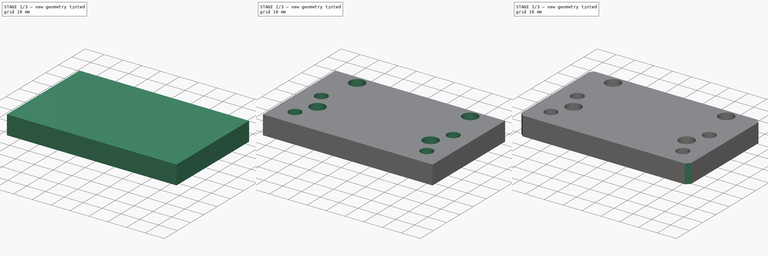
[diagram: build sequence overview — one tinted view per stage of 3, left to right]
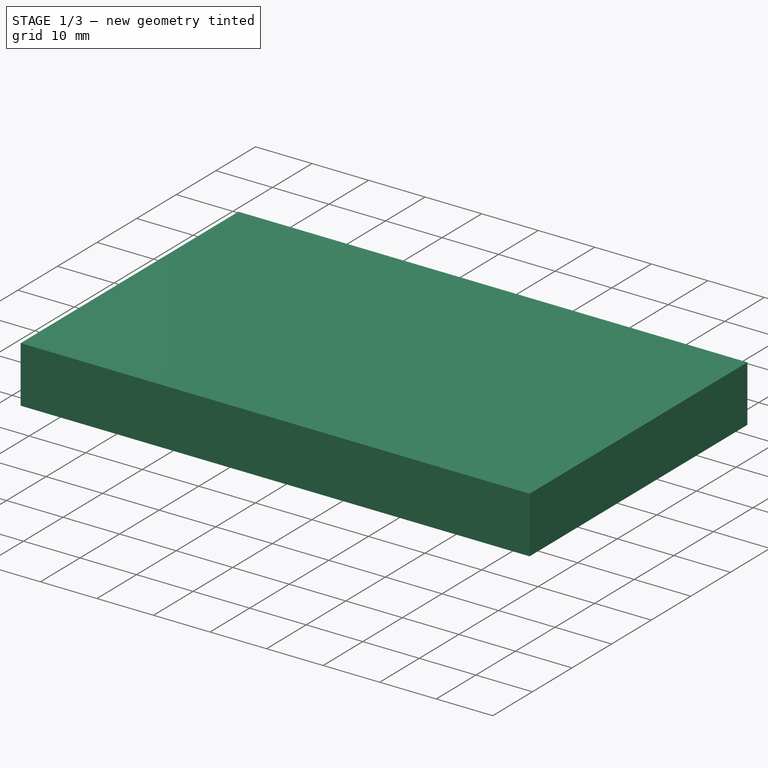
[diagram: stage 1 of 3 — iso view after this stage's code; geometry added in this stage tinted green]
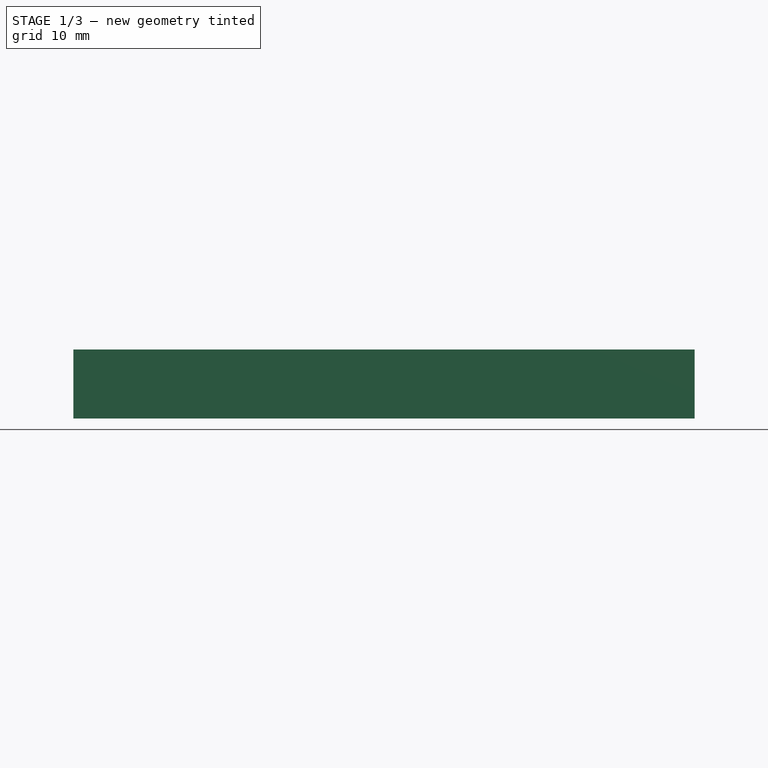
[diagram: stage 1 of 3 — front view after this stage's code; geometry added in this stage tinted green]
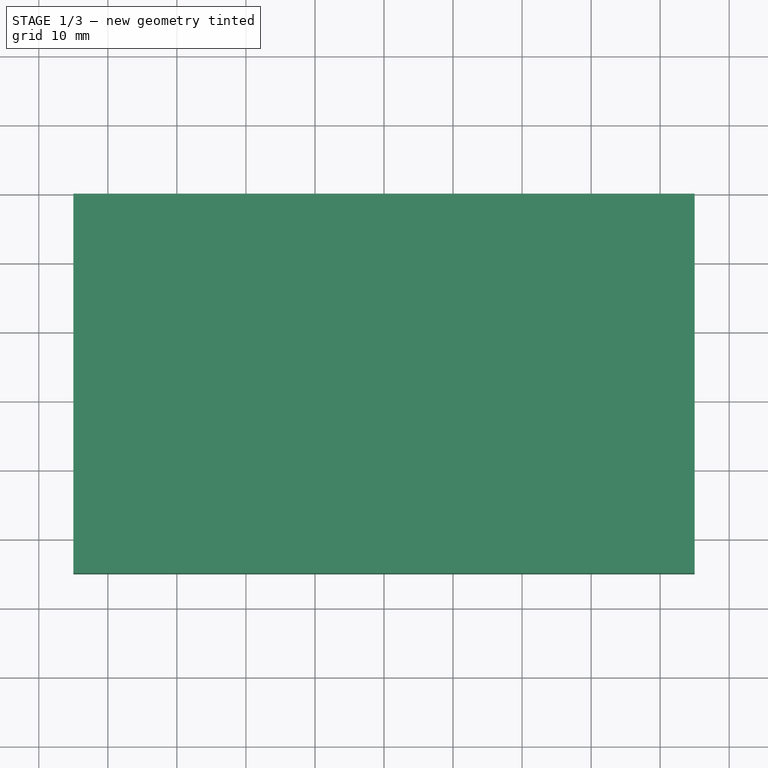
[diagram: stage 1 of 3 — top view after this stage's code; geometry added in this stage tinted green]
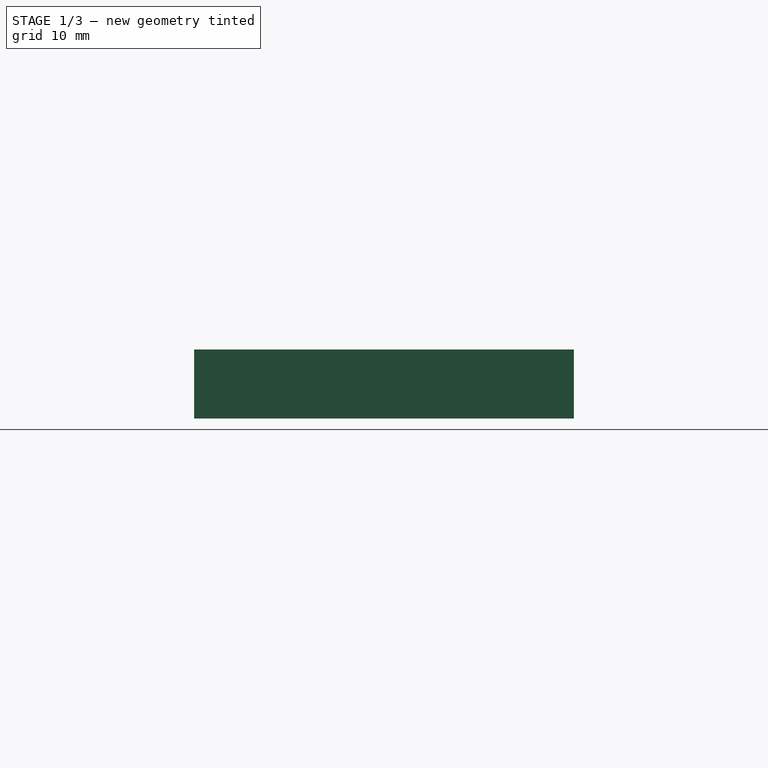
[diagram: stage 1 of 3 — right view after this stage's code; geometry added in this stage tinted green]
FCSTD DOCUMENT  (FreeCAD 1.0R39109 (Git))
Label: Spindle bracket
License: All rights reserved
LicenseURL: http://en.wikipedia.org/wiki/All_rights_reserved
objects: Sketcher::SketchObject×4, PartDesign::Pocket×2, PartDesign::Chamfer×2, PartDesign::Pad×1, PartDesign::Hole×1, Part::Feature×1, PartDesign::Body×1, Part::FeaturePython×1
note: 29 computed .brp shape members not serialized (recipe doc carries the construction recipe); baked Part::Feature solids carry a one-line shape summary decoded from their .brp

FEATURE [Sketcher::SketchObject] Sketch
  ArcFitTolerance = 1e-06
  AttachmentSupport = -> [XY_Plane]
  FullyConstrained = true
  MakeInternals = false
  MapMode = 5
  sketch-geometry (4):
    g0: LineSegment StartX=-45 StartY=50 StartZ=0 EndX=-45 EndY=-5 EndZ=0
    g1: LineSegment StartX=-45 StartY=-5 StartZ=0 EndX=45 EndY=-5 EndZ=0
    g2: LineSegment StartX=45 StartY=-5 StartZ=0 EndX=45 EndY=50 EndZ=0
    g3: LineSegment StartX=45 StartY=50 StartZ=0 EndX=-45 EndY=50 EndZ=0
  constraints (11):
    c: Coincident(g0,g1)
    c: Coincident(g1,g2)
    c: Coincident(g2,g3)
    c: Coincident(g3,g0)
    c: Vertical(g0)
    c: Vertical(g2)
    c: Horizontal(g3)
    c: Distance(g0,g2) = 90
    c: Distance(g1,g3) = 55
    c: Symmetric(g0,g1,g-2)
    c: DistanceY(g-1,g1) = -5
FEATURE [PartDesign::Pad] Pad
  Direction = (0,0,1)
  Length = 10
  Length2 = 10
  Profile = -> Sketch
  ReferenceAxis = -> Sketch [N_Axis]
  Refine = true
  Reversed = true
  Suppressed = false
  Type = 0
FEATURE [PartDesign::Body] Body
  AllowCompound = false
  Group = -> [Sketch,Pad,Sketch001,Hole,Sketch002,Pocket,Sketch003,Pocket001,Chamfer,Chamfer001]
  Origin = -> Origin
  Tip = -> Chamfer001
FEATURE [Part::FeaturePython] Nut  label="M6-Nut"  # WARN: FeaturePython — macro-defined, semantics opaque (R4)
  Diameter = 8
  Invert = false
  LeftHanded = false
  MatchOuter = false
  OffsetAngle = 0
  Placement = pos=(-35,5,-10) rot=(0,0,1;1.5708rad)
  Thread = false
  Type = 31
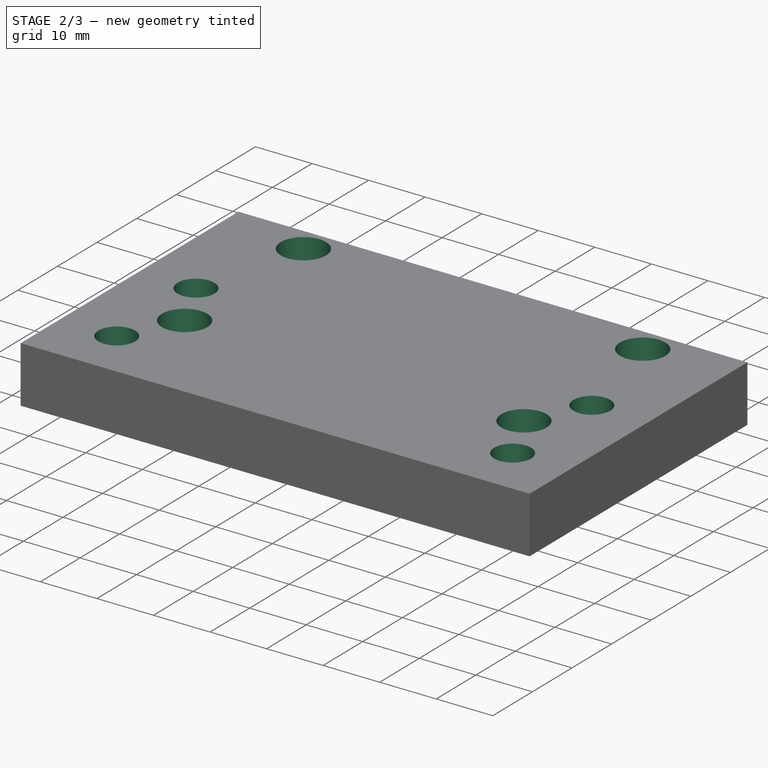
[diagram: stage 2 of 3 — iso view after this stage's code; geometry added in this stage tinted green]
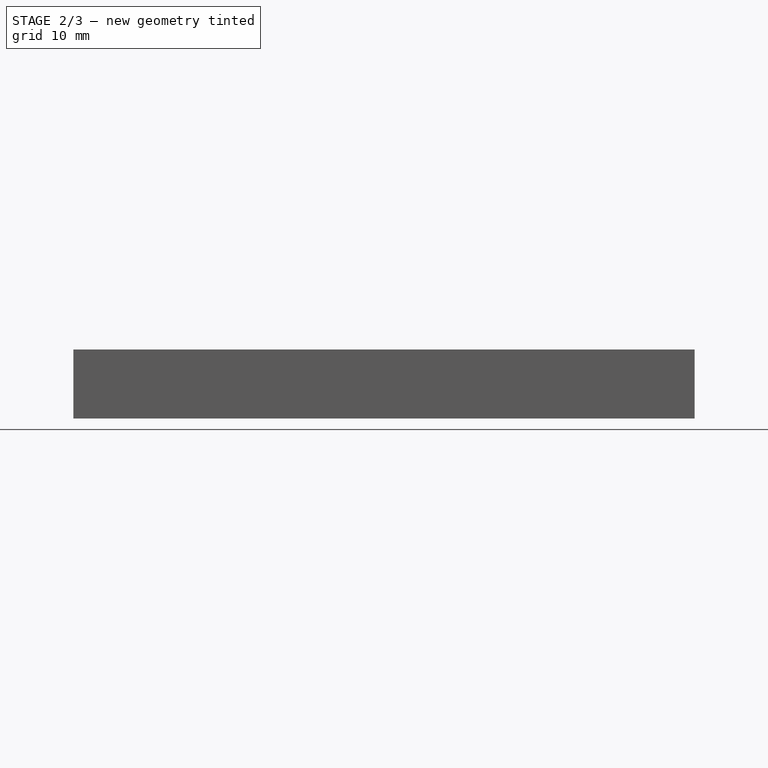
[diagram: stage 2 of 3 — front view after this stage's code; geometry added in this stage tinted green]
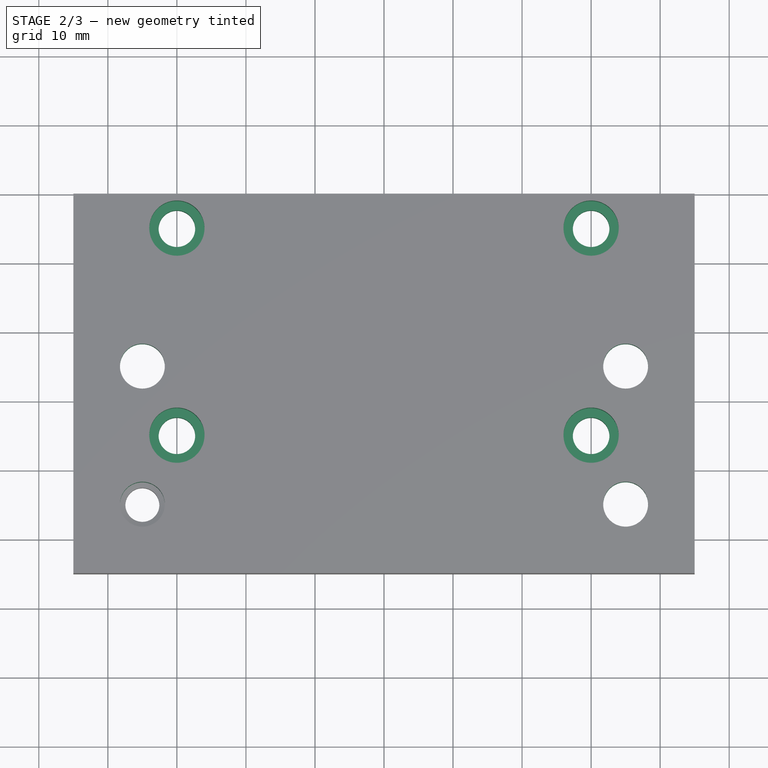
[diagram: stage 2 of 3 — top view after this stage's code; geometry added in this stage tinted green]
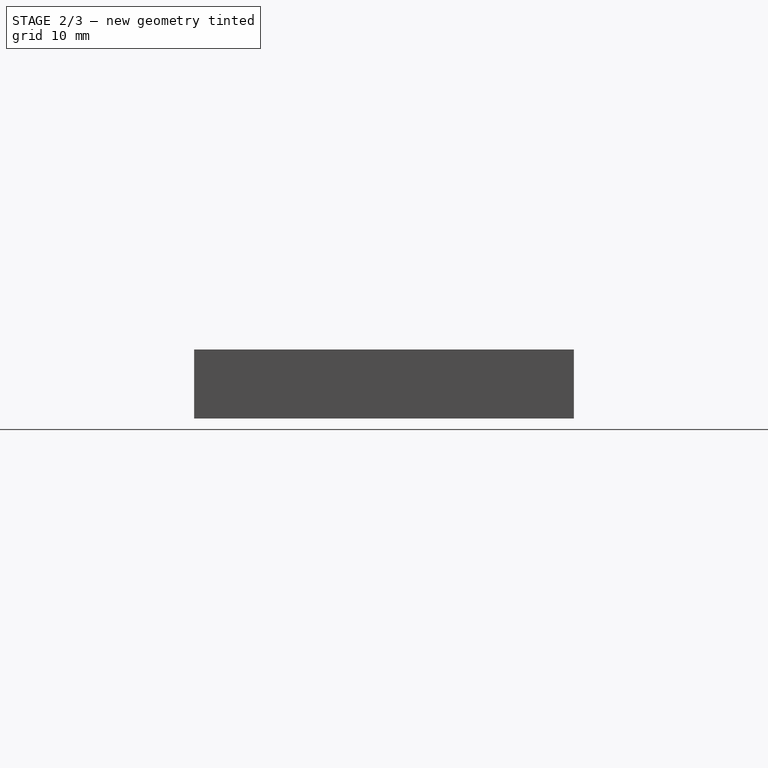
[diagram: stage 2 of 3 — right view after this stage's code; geometry added in this stage tinted green]
FEATURE [Sketcher::SketchObject] Sketch001
  ArcFitTolerance = 1e-06
  AttachmentSupport = -> [XY_Plane]
  FullyConstrained = true
  MakeInternals = false
  MapMode = 5
  sketch-geometry (9):
    g0: LineSegment [constr] StartX=-30 StartY=45 StartZ=0 EndX=-30 EndY=15 EndZ=0
    g1: LineSegment [constr] StartX=-30 StartY=15 StartZ=0 EndX=30 EndY=15 EndZ=0
    g2: LineSegment [constr] StartX=30 StartY=15 StartZ=0 EndX=30 EndY=45 EndZ=0
    g3: LineSegment [constr] StartX=30 StartY=45 StartZ=0 EndX=-30 EndY=45 EndZ=0
    g4: Circle CenterX=-30 CenterY=45 CenterZ=0 NormalX=0 NormalY=0 NormalZ=1 AngleXU=0 Radius=2.5
    g5: Circle CenterX=30 CenterY=45 CenterZ=0 NormalX=0 NormalY=0 NormalZ=1 AngleXU=0 Radius=2.5
    g6: Circle CenterX=30 CenterY=15 CenterZ=0 NormalX=0 NormalY=0 NormalZ=1 AngleXU=0 Radius=2.5
    g7: Circle CenterX=-30 CenterY=15 CenterZ=0 NormalX=0 NormalY=0 NormalZ=1 AngleXU=0 Radius=2.5
    g8: GeomPoint X=0 Y=30 Z=0
  constraints (21):
    c: Coincident(g0,g1)
    c: Coincident(g1,g2)
    c: Coincident(g2,g3)
    c: Coincident(g3,g0)
    c: Vertical(g0)
    c: Vertical(g2)
    c: Horizontal(g1)
    c: Horizontal(g3)
    c: Distance(g1) = 60
    c: Distance(g2) = 30
    c: Diameter(g4) = 5
    c: Coincident(g4,g0)
    c: Coincident(g5,g2)
    c: Coincident(g6,g1)
    c: Coincident(g7,g0)
    c: Equal(g7,g4)
    c: Equal(g4,g5)
    c: Equal(g5,g6)
    c: PointOnObject(g8,g-2)
    c: Symmetric(g0,g1,g8)
    c: DistanceY(g-1,g8) = 30
FEATURE [PartDesign::Hole] Hole
  BaseFeature = -> Pad
  CustomThreadClearance = 0
  Depth = 25
  DepthType = 0
  Diameter = 5.3
  DrillForDepth = false
  DrillPoint = 1
  DrillPointAngle = 118
  HoleCutCountersinkAngle = 90
  HoleCutCustomValues = false
  HoleCutDepth = 5
  HoleCutDiameter = 8
  HoleCutType = 1
  ModelThread = false
  Profile = -> Sketch001
  Refine = true
  Suppressed = false
  Tapered = false
  TaperedAngle = 90
  ThreadClass = 0
  ThreadDepth = 25
  ThreadDepthType = 0
  ThreadDirection = 0
  ThreadFit = 1
  ThreadSize = 13
  ThreadType = 1
  Threaded = false
  UseCustomThreadClearance = false
FEATURE [Sketcher::SketchObject] Sketch002
  ArcFitTolerance = 1e-06
  AttachmentOffset = pos=(0,0,-10) rot=(0,0,1;0rad)
  AttachmentSupport = -> [XY_Plane]
  FullyConstrained = true
  MakeInternals = false
  MapMode = 5
  Placement = pos=(0,0,-10) rot=(0,0,1;0rad)
  sketch-geometry (33):
    g0: LineSegment [constr] StartX=-35 StartY=25 StartZ=0 EndX=-35 EndY=5 EndZ=0
    g1: LineSegment [constr] StartX=-35 StartY=5 StartZ=0 EndX=35 EndY=5 EndZ=0
    g2: LineSegment [constr] StartX=35 StartY=5 StartZ=0 EndX=35 EndY=25 EndZ=0
    g3: LineSegment [constr] StartX=35 StartY=25 StartZ=0 EndX=-35 EndY=25 EndZ=0
    g4: GeomPoint [constr] X=0 Y=15 Z=0
    g5: LineSegment StartX=-29.8038 StartY=22 StartZ=0 EndX=-29.8038 EndY=28 EndZ=0
    g6: LineSegment StartX=-29.8038 StartY=28 StartZ=0 EndX=-35 EndY=31 EndZ=0
    g7: LineSegment StartX=-35 StartY=31 StartZ=0 EndX=-40.1962 EndY=28 EndZ=0
    g8: LineSegment StartX=-40.1962 StartY=28 StartZ=0 EndX=-40.1962 EndY=22 EndZ=0
    g9: LineSegment StartX=-40.1962 StartY=22 StartZ=0 EndX=-35 EndY=19 EndZ=0
    g10: LineSegment StartX=-35 StartY=19 StartZ=0 EndX=-29.8038 EndY=22 EndZ=0
    g11: Circle [constr] CenterX=-35 CenterY=25 CenterZ=0 NormalX=0 NormalY=0 NormalZ=1 AngleXU=0 Radius=6
    g12: LineSegment StartX=-29.8038 StartY=2 StartZ=0 EndX=-29.8038 EndY=8 EndZ=0
    g13: LineSegment StartX=-29.8038 StartY=8 StartZ=0 EndX=-35 EndY=11 EndZ=0
    g14: LineSegment StartX=-35 StartY=11 StartZ=0 EndX=-40.1962 EndY=8 EndZ=0
    g15: LineSegment StartX=-40.1962 StartY=8 StartZ=0 EndX=-40.1962 EndY=2 EndZ=0
    g16: LineSegment StartX=-40.1962 StartY=2 StartZ=0 EndX=-35 EndY=-1 EndZ=0
    g17: LineSegment StartX=-35 StartY=-1 StartZ=0 EndX=-29.8038 EndY=2 EndZ=0
    g18: Circle [constr] CenterX=-35 CenterY=5 CenterZ=0 NormalX=0 NormalY=0 NormalZ=1 AngleXU=0 Radius=6
    g19: LineSegment StartX=40.1962 StartY=22 StartZ=0 EndX=40.1962 EndY=28 EndZ=0
    g20: LineSegment StartX=40.1962 StartY=28 StartZ=0 EndX=35 EndY=31 EndZ=0
    g21: LineSegment StartX=35 StartY=31 StartZ=0 EndX=29.8038 EndY=28 EndZ=0
    g22: LineSegment StartX=29.8038 StartY=28 StartZ=0 EndX=29.8038 EndY=22 EndZ=0
    g23: LineSegment StartX=29.8038 StartY=22 StartZ=0 EndX=35 EndY=19 EndZ=0
    g24: LineSegment StartX=35 StartY=19 StartZ=0 EndX=40.1962 EndY=22 EndZ=0
    g25: Circle [constr] CenterX=35 CenterY=25 CenterZ=0 NormalX=0 NormalY=0 NormalZ=1 AngleXU=0 Radius=6
    g26: LineSegment StartX=40.1962 StartY=8 StartZ=0 EndX=35 EndY=11 EndZ=0
    g27: LineSegment StartX=35 StartY=11 StartZ=0 EndX=29.8038 EndY=8 EndZ=0
    g28: LineSegment StartX=29.8038 StartY=8 StartZ=0 EndX=29.8038 EndY=2 EndZ=0
    g29: LineSegment StartX=29.8038 StartY=2 StartZ=0 EndX=35 EndY=-1 EndZ=0
    g30: LineSegment StartX=35 StartY=-1 StartZ=0 EndX=40.1962 EndY=2 EndZ=0
    g31: LineSegment StartX=40.1962 StartY=2 StartZ=0 EndX=40.1962 EndY=8 EndZ=0
    g32: Circle [constr] CenterX=35 CenterY=5 CenterZ=0 NormalX=0 NormalY=0 NormalZ=1 AngleXU=0 Radius=6
  constraints (77):
    c: Coincident(g0,g1)
    c: Coincident(g3,g0)
    c: Vertical(g0)
    c: Vertical(g2)
    c: Horizontal(g1)
    c: Horizontal(g3)
    c: Distance(g1) = 70
    c: Distance(g2) = 20
    c: PointOnObject(g4,g-2)
    c: Symmetric(g0,g1,g4)
    c: Coincident(g5,g6)
    c: Coincident(g6,g7)
    c: Coincident(g7,g8)
    c: Coincident(g8,g9)
    c: Coincident(g9,g10)
    c: Coincident(g10,g5)
    c: Equal(g5, g6-g10) x5
    c: PointOnObject(g5,g11)
    c: PointOnObject(g6,g11)
    c: PointOnObject(g7,g11)
    c: PointOnObject(g8,g11)
    c: PointOnObject(g9,g11)
    c: PointOnObject(g10,g11)
    c: Coincident(g11,g0)
    c: Diameter(g11) = 12
    c: DistanceY(g-1,g4) = 15
    c: Coincident(g12,g13)
    c: Coincident(g13,g14)
    c: Coincident(g14,g15)
    c: Coincident(g15,g16)
    c: Coincident(g16,g17)
    c: Coincident(g17,g12)
    c: Equal(g12, g13-g17) x5
    c: PointOnObject(g12,g18)
    c: PointOnObject(g13,g18)
    c: PointOnObject(g14,g18)
    c: PointOnObject(g15,g18)
    c: PointOnObject(g16,g18)
    c: Coincident(g18,g0)
    c: Vertical(g12)
    c: PointOnObject(g12,g18)
    c: Equal(g18,g11)
    c: Vertical(g5)
    c: Coincident(g19,g20)
    c: Coincident(g20,g21)
    c: Coincident(g21,g22)
    c: Coincident(g22,g23)
    c: Coincident(g23,g24)
    c: Coincident(g24,g19)
    c: Equal(g19, g20-g24) x5
    c: PointOnObject(g19,g25)
    c: PointOnObject(g20,g25)
    c: PointOnObject(g21,g25)
    c: PointOnObject(g22,g25)
    c: PointOnObject(g23,g25)
    c: PointOnObject(g24,g25)
    c: Coincident(g25,g2)
    c: Coincident(g26,g27)
    c: Coincident(g27,g28)
    c: Coincident(g28,g29)
    c: Coincident(g29,g30)
    c: Coincident(g30,g31)
    c: Coincident(g31,g26)
    c: Equal(g26, g27-g31) x5
    c: PointOnObject(g26,g32)
    c: PointOnObject(g27,g32)
    c: PointOnObject(g28,g32)
    c: PointOnObject(g29,g32)
    c: PointOnObject(g30,g32)
    c: PointOnObject(g31,g32)
    c: Coincident(g32,g1)
    c: Equal(g32,g25)
    c: Equal(g25,g11)
    c: Coincident(g1,g2)
    c: Coincident(g2,g3)
    c: Vertical(g22)
    c: Vertical(g28)
FEATURE [PartDesign::Pocket] Pocket
  BaseFeature = -> Hole
  Direction = (0,0,-1)
  Length = 5
  Length2 = 5
  Profile = -> Sketch002
  ReferenceAxis = -> Sketch002 [N_Axis]
  Refine = true
  Reversed = true
  Suppressed = false
  Type = 0
FEATURE [Sketcher::SketchObject] Sketch003
  ArcFitTolerance = 1e-06
  AttachmentOffset = pos=(0,0,-10) rot=(0,0,1;0rad)
  AttachmentSupport = -> [XY_Plane]
  FullyConstrained = true
  MakeInternals = false
  MapMode = 5
  Placement = pos=(0,0,-10) rot=(0,0,1;0rad)
  sketch-geometry (9):
    g0: LineSegment [constr] StartX=-35 StartY=25 StartZ=0 EndX=-35 EndY=5 EndZ=0
    g1: LineSegment [constr] StartX=-35 StartY=5 StartZ=0 EndX=35 EndY=5 EndZ=0
    g2: LineSegment [constr] StartX=35 StartY=5 StartZ=0 EndX=35 EndY=25 EndZ=0
    g3: LineSegment [constr] StartX=35 StartY=25 StartZ=0 EndX=-35 EndY=25 EndZ=0
    g4: GeomPoint [constr] X=0 Y=15 Z=0
    g5: Circle CenterX=-35 CenterY=25 CenterZ=0 NormalX=0 NormalY=0 NormalZ=1 AngleXU=0 Radius=3.25
    g6: Circle CenterX=-35 CenterY=5 CenterZ=0 NormalX=0 NormalY=0 NormalZ=1 AngleXU=0 Radius=3.25
    g7: Circle CenterX=35 CenterY=5 CenterZ=0 NormalX=0 NormalY=0 NormalZ=1 AngleXU=0 Radius=3.25
    g8: Circle CenterX=35 CenterY=25 CenterZ=0 NormalX=0 NormalY=0 NormalZ=1 AngleXU=0 Radius=3.25
  constraints (21):
    c: Vertical(g0)
    c: Vertical(g2)
    c: Horizontal(g1)
    c: Horizontal(g3)
    c: Distance(g1) = 70
    c: Distance(g2) = 20
    c: PointOnObject(g4,g-2)
    c: Symmetric(g0,g1,g4)
    c: DistanceY(g-1,g4) = 15
    c: Coincident(g0,g1)
    c: Coincident(g3,g0)
    c: Coincident(g2,g3)
    c: Coincident(g2,g1)
    c: Diameter(g5) = 6.5
    c: Coincident(g5,g0)
    c: Coincident(g6,g0)
    c: Coincident(g7,g1)
    c: Coincident(g8,g2)
    c: Equal(g8,g7)
    c: Equal(g7,g6)
    c: Equal(g6,g5)
FEATURE [PartDesign::Pocket] Pocket001
  BaseFeature = -> Pocket
  Direction = (0,0,-1)
  Length = 5
  Length2 = 5
  Midplane = true
  Profile = -> Sketch003
  ReferenceAxis = -> Sketch003 [N_Axis]
  Refine = true
  Suppressed = false
  Type = 1
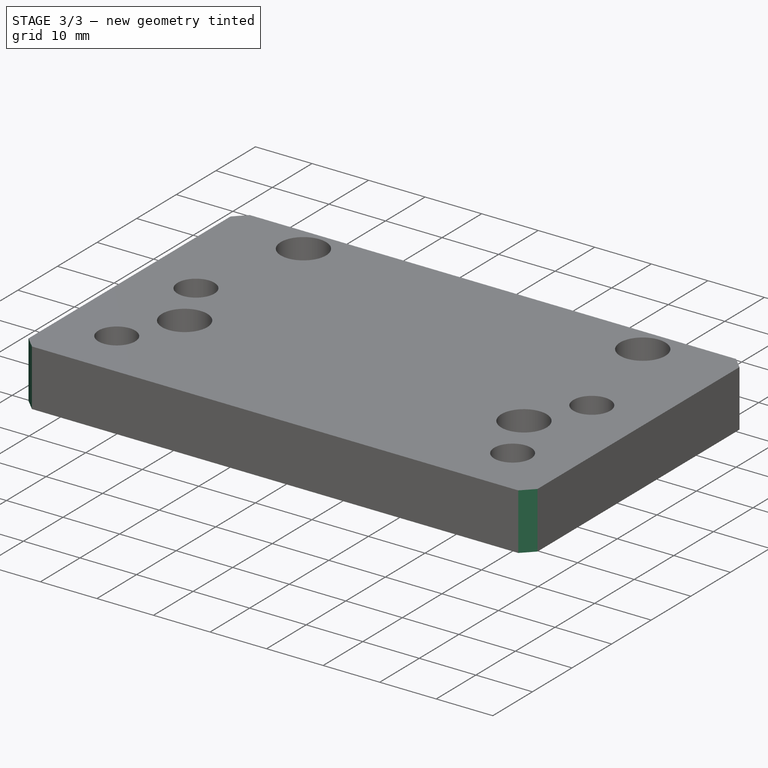
[diagram: stage 3 of 3 — iso view after this stage's code; geometry added in this stage tinted green]
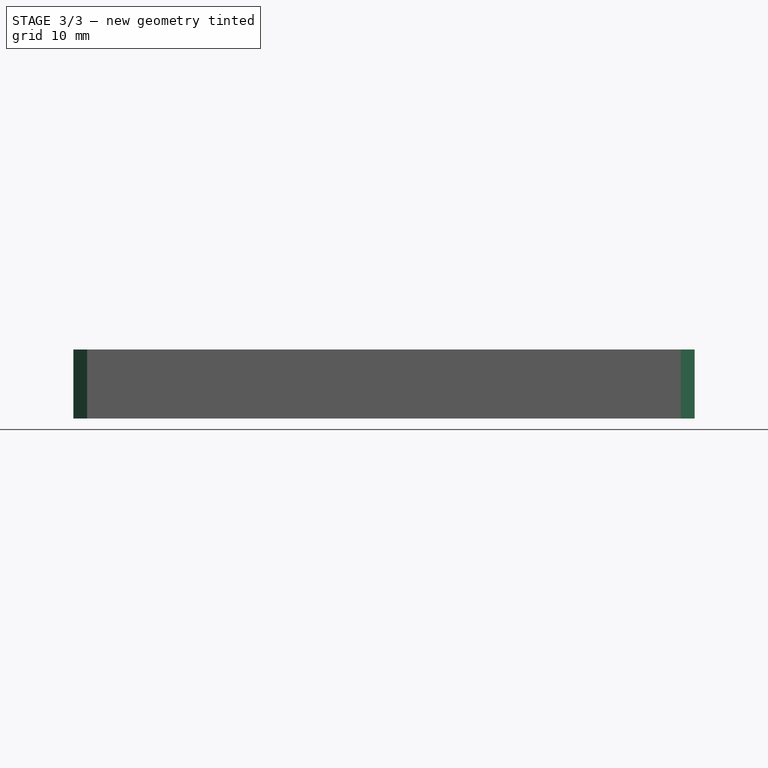
[diagram: stage 3 of 3 — front view after this stage's code; geometry added in this stage tinted green]
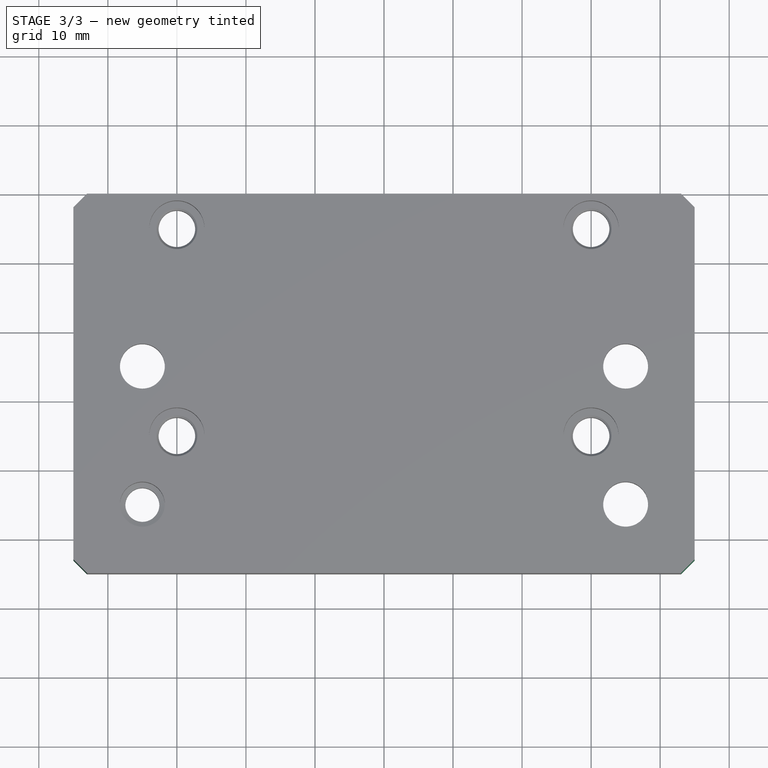
[diagram: stage 3 of 3 — top view after this stage's code; geometry added in this stage tinted green]
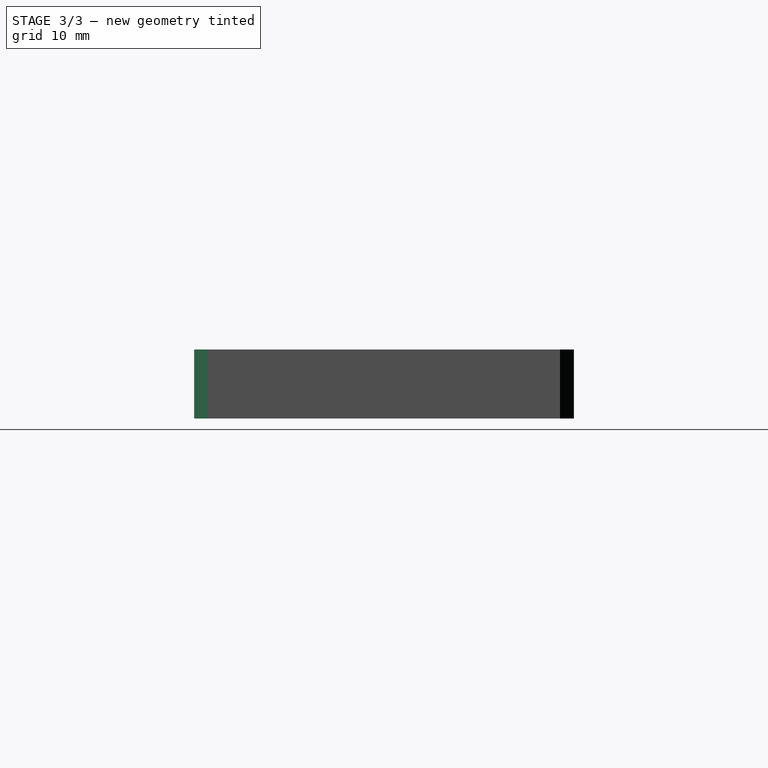
[diagram: stage 3 of 3 — right view after this stage's code; geometry added in this stage tinted green]
FEATURE [PartDesign::Chamfer] Chamfer
  Angle = 45
  Base = -> Pocket001 [Edge1,Edge2,Edge8,Edge5]
  BaseFeature = -> Pocket001
  ChamferType = 0
  FlipDirection = false
  Refine = true
  Size = 2
  Size2 = 1
  SupportTransform = false
  Suppressed = false
  UseAllEdges = false
FEATURE [Part::Feature] Body001  label="Spindle clamp 52mm"
  Placement = pos=(0,-5,33.25) rot=(1,0,0;4.71239rad)
  shape: bbox 90 x 40 x 66.5 mm, 32 faces (baked)
FEATURE [PartDesign::Chamfer] Chamfer001
  Angle = 45
  Base = -> Chamfer [Edge90,Edge118,Edge132,Edge104]
  BaseFeature = -> Chamfer
  ChamferType = 0
  FlipDirection = false
  Refine = true
  Size = 0.3
  Size2 = 1
  SupportTransform = false
  Suppressed = false
  UseAllEdges = false
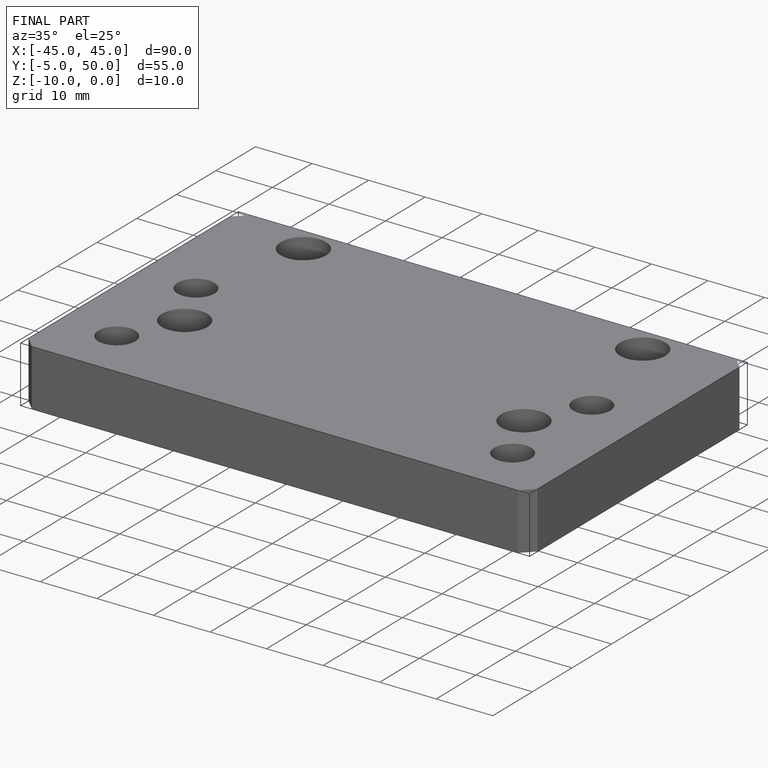
[diagram: finished part — iso view with bounding-box wireframe]
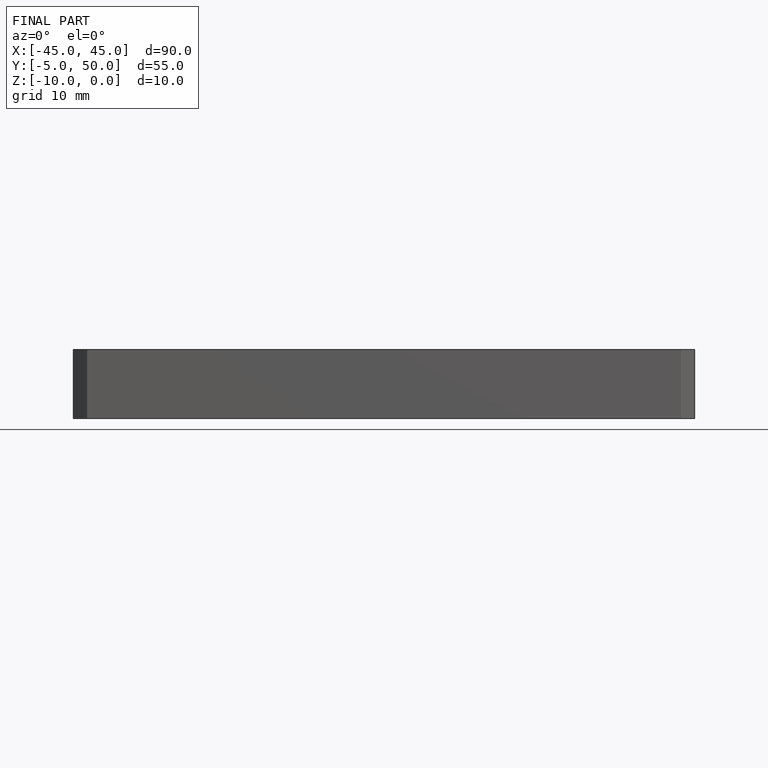
[diagram: finished part — front view with bounding-box wireframe]
